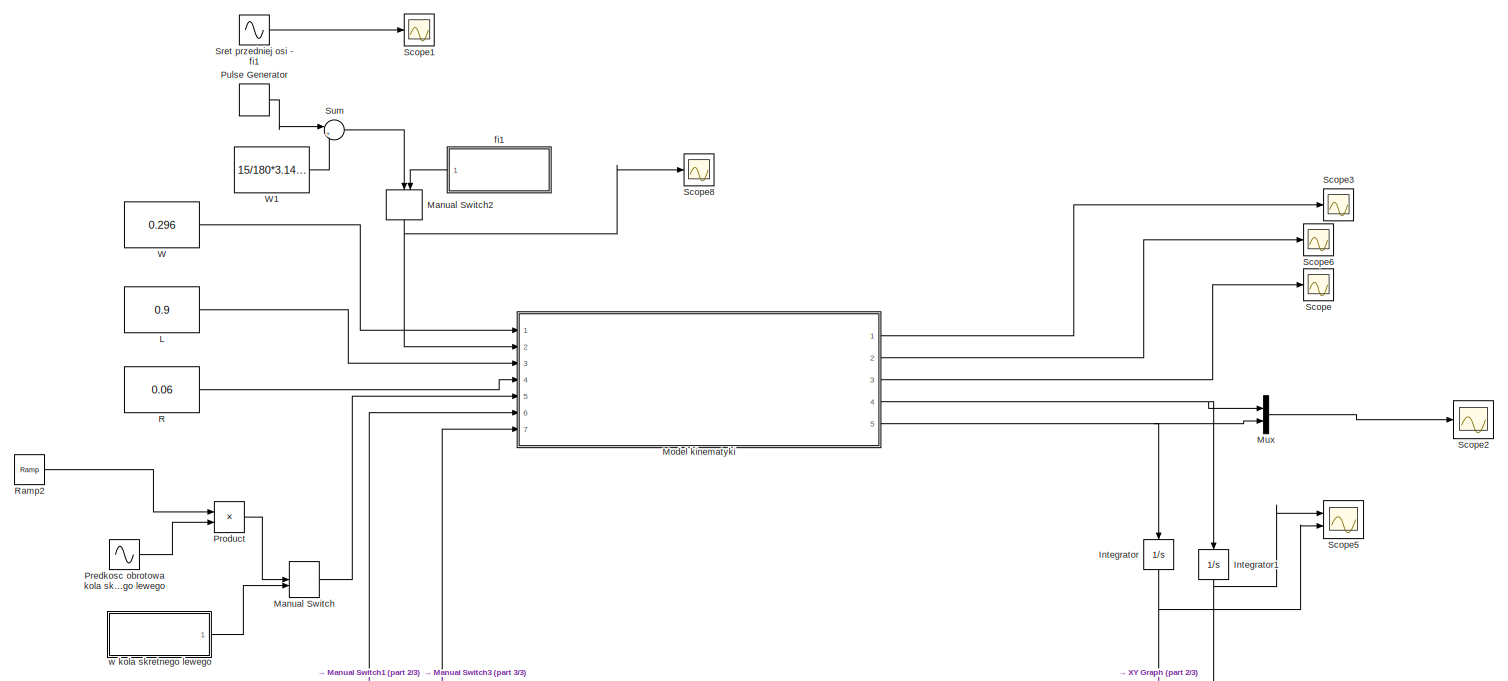
[diagram: root canvas - part 1/3, full width, top band]
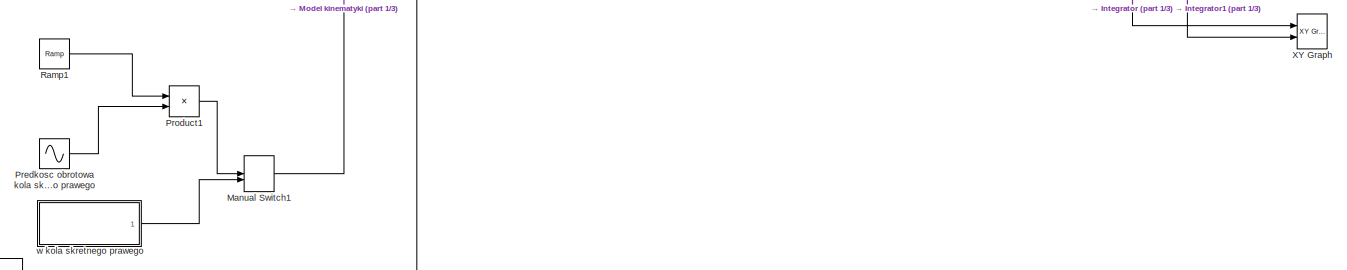
[diagram: root canvas - part 2/3, full width, middle band]
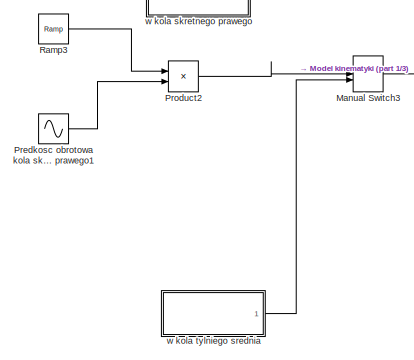
[diagram: root canvas - part 3/3, bottom left region]
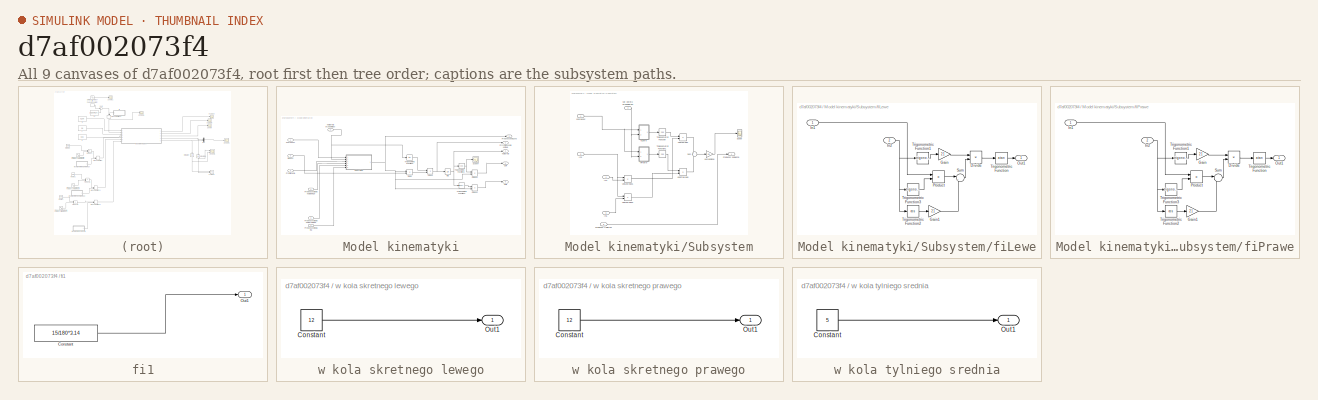
[diagram: thumbnail index - all 9 canvases of the model, root first then tree order]
MODEL slx_d7af002073f4
KIND model
CONFIG AbsTol = auto
CONFIG EnableMultiTasking = off
CONFIG FixedStep = 0.01
CONFIG MaxStep = auto
CONFIG MinStep = auto
CONFIG RelTol = 1e-3
CONFIG SampleTimeConstraint = Unconstrained
CONFIG Solver = FixedStepAuto
CONFIG SolverName = FixedStepAuto
CONFIG StartTime = 0.0
CONFIG StopTime = 40.0
BLOCK [Integrator] Integrator
  Ports = [1, 1]
BLOCK [Integrator] Integrator1
  Ports = [1, 1]
BLOCK [Constant] L
  Value = 0.9
BLOCK [ManualSwitch] Manual Switch
  CurrentSetting = 0
BLOCK [ManualSwitch] Manual Switch1
  CurrentSetting = 0
BLOCK [ManualSwitch] Manual Switch2
BLOCK [ManualSwitch] Manual Switch3
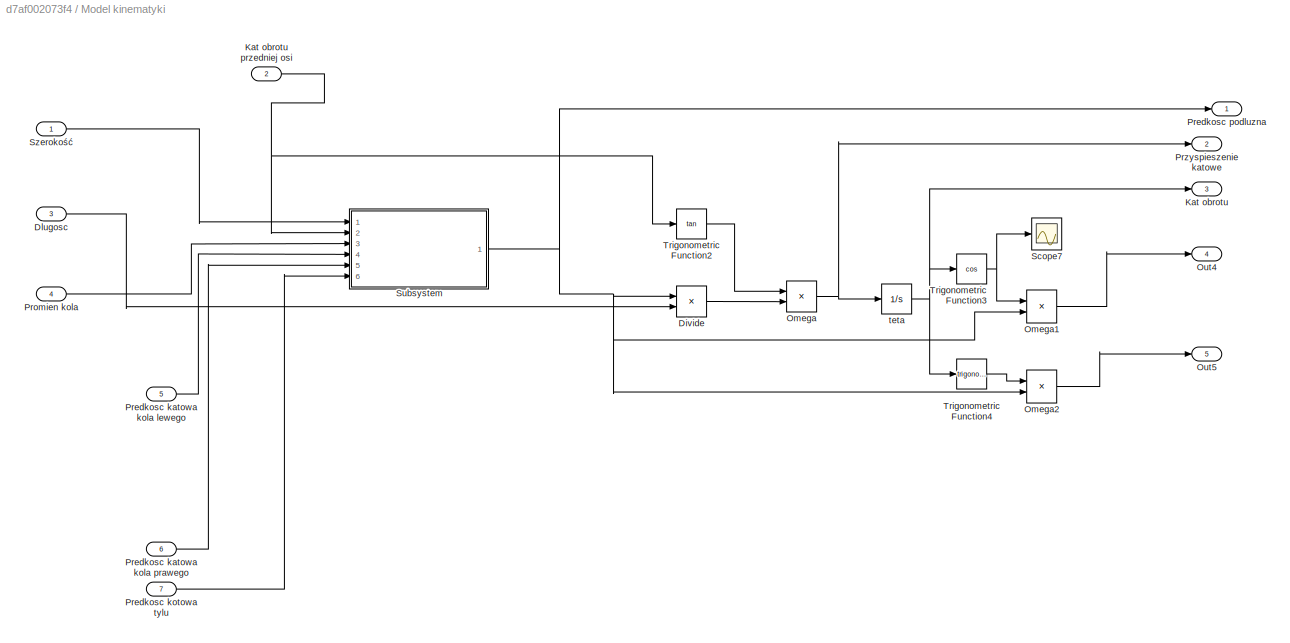
BLOCK [SubSystem] Model kinematyki
  Ports = [7, 5]
  RequestExecContextInheritance = off
BLOCK [Product] Model kinematyki/Divide
  InputSameDT = off
  Inputs = */
  OutDataTypeStr = Inherit: Inherit via internal rule
  Ports = [2, 1]
  RndMeth = Floor
  SaturateOnIntegerOverflow = off
BLOCK [Inport] Model kinematyki/Dlugosc
  IconDisplay = Port number
  Port = 3
BLOCK [Outport] Model kinematyki/Kat obrotu
  IconDisplay = Port number
  Port = 3
BLOCK [Inport] Model kinematyki/Kat obrotu przedniej osi
  IconDisplay = Port number
  Port = 2
BLOCK [Product] Model kinematyki/Omega
  InputSameDT = off
  OutDataTypeStr = Inherit: Inherit via internal rule
  Ports = [2, 1]
  RndMeth = Floor
  SaturateOnIntegerOverflow = off
BLOCK [Product] Model kinematyki/Omega1
  InputSameDT = off
  OutDataTypeStr = Inherit: Inherit via internal rule
  Ports = [2, 1]
  RndMeth = Floor
  SaturateOnIntegerOverflow = off
BLOCK [Product] Model kinematyki/Omega2
  InputSameDT = off
  OutDataTypeStr = Inherit: Inherit via internal rule
  Ports = [2, 1]
  RndMeth = Floor
  SaturateOnIntegerOverflow = off
BLOCK [Outport] Model kinematyki/Out4
  IconDisplay = Port number
  Port = 4
BLOCK [Outport] Model kinematyki/Out5
  IconDisplay = Port number
  Port = 5
BLOCK [Inport] Model kinematyki/Predkosc katowa kola lewego
  IconDisplay = Port number
  Port = 5
BLOCK [Inport] Model kinematyki/Predkosc katowa kola prawego
  IconDisplay = Port number
  Port = 6
BLOCK [Inport] Model kinematyki/Predkosc kotowa tylu
  IconDisplay = Port number
  Port = 7
BLOCK [Outport] Model kinematyki/Predkosc podluzna
  IconDisplay = Port number
BLOCK [Inport] Model kinematyki/Promien kola
  IconDisplay = Port number
  Port = 4
BLOCK [Outport] Model kinematyki/Przyspieszenie katowe
  IconDisplay = Port number
  Port = 2
BLOCK [Scope] Model kinematyki/Scope7
  Floating = off
  NumInputPorts = 1
  Ports = [1]
  ScopeSpecificationString = Simulink.scopes.TimeScopeBlockCfg('CurrentConfiguration', extmgr.ConfigurationSet(extmgr.Configuration('Core','General UI',true),extmgr.Configuration('Core','Source UI',true),extmgr.Configuration('Sources','WiredSimulink',true,'DataLoggingVariableName','ScopeData7'),extmgr.Configuration('Visuals','Time Domain',true,'SerializedDisplays',{struct('MinYLimReal','-1.24979','MaxYLimReal','1.25','YLabelR...<+1417ch>
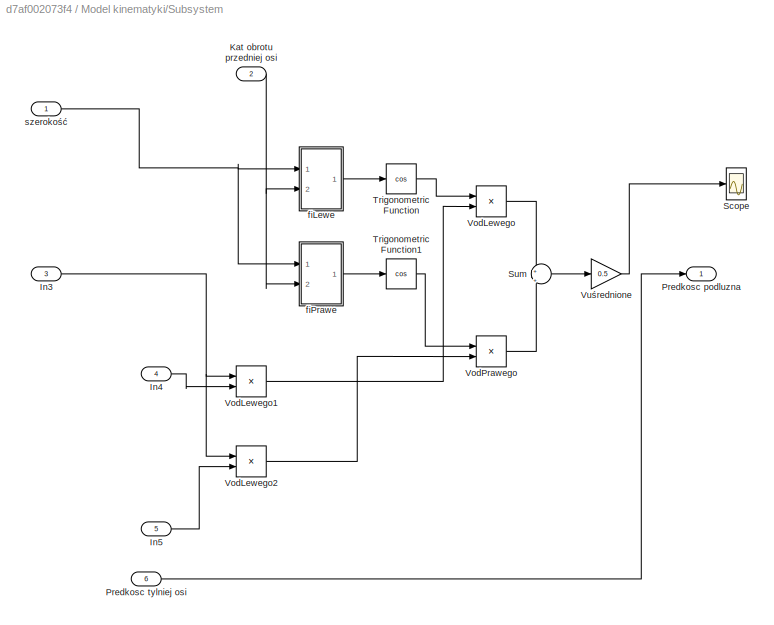
BLOCK [SubSystem] Model kinematyki/Subsystem
  Ports = [6, 1]
  RequestExecContextInheritance = off
BLOCK [Inport] Model kinematyki/Subsystem/In3
  IconDisplay = Port number
  Port = 3
BLOCK [Inport] Model kinematyki/Subsystem/In4
  IconDisplay = Port number
  Port = 4
BLOCK [Inport] Model kinematyki/Subsystem/In5
  IconDisplay = Port number
  Port = 5
BLOCK [Inport] Model kinematyki/Subsystem/Kat obrotu przedniej osi
  IconDisplay = Port number
  Port = 2
BLOCK [Outport] Model kinematyki/Subsystem/Predkosc podluzna
  IconDisplay = Port number
BLOCK [Inport] Model kinematyki/Subsystem/Predkosc tylniej osi
  IconDisplay = Port number
  Port = 6
BLOCK [Scope] Model kinematyki/Subsystem/Scope
  Floating = off
  NumInputPorts = 1
  Ports = [1]
  ScopeSpecificationString = Simulink.scopes.TimeScopeBlockCfg('CurrentConfiguration', extmgr.ConfigurationSet(extmgr.Configuration('Core','General UI',true),extmgr.Configuration('Core','Source UI',true),extmgr.Configuration('Sources','WiredSimulink',true,'DataLoggingVariableName','ScopeData1'),extmgr.Configuration('Visuals','Time Domain',true),extmgr.Configuration('Tools','Plot Navigation',true),extmgr.Configuration('Tools',...<+40ch>
BLOCK [Sum] Model kinematyki/Subsystem/Sum
  IconShape = round
  InputSameDT = off
  Inputs = +||+
  OutDataTypeStr = Inherit: Inherit via internal rule
  Ports = [2, 1]
  SaturateOnIntegerOverflow = off
BLOCK [Trigonometry] Model kinematyki/Subsystem/Trigonometric Function
  Operator = cos
  Ports = [1, 1]
BLOCK [Trigonometry] Model kinematyki/Subsystem/Trigonometric Function1
  Operator = cos
  Ports = [1, 1]
BLOCK [Product] Model kinematyki/Subsystem/VodLewego
  InputSameDT = off
  OutDataTypeStr = Inherit: Inherit via internal rule
  Ports = [2, 1]
  RndMeth = Floor
  SaturateOnIntegerOverflow = off
BLOCK [Product] Model kinematyki/Subsystem/VodLewego1
  InputSameDT = off
  OutDataTypeStr = Inherit: Inherit via internal rule
  Ports = [2, 1]
  RndMeth = Floor
  SaturateOnIntegerOverflow = off
BLOCK [Product] Model kinematyki/Subsystem/VodLewego2
  InputSameDT = off
  OutDataTypeStr = Inherit: Inherit via internal rule
  Ports = [2, 1]
  RndMeth = Floor
  SaturateOnIntegerOverflow = off
BLOCK [Product] Model kinematyki/Subsystem/VodPrawego
  InputSameDT = off
  OutDataTypeStr = Inherit: Inherit via internal rule
  Ports = [2, 1]
  RndMeth = Floor
  SaturateOnIntegerOverflow = off
BLOCK [Gain] Model kinematyki/Subsystem/Vuśrednione
  Gain = 0.5
  OutDataTypeStr = Inherit: Inherit via internal rule
  ParamDataTypeStr = Inherit: Inherit via internal rule
  SaturateOnIntegerOverflow = off
BLOCK [SubSystem] Model kinematyki/Subsystem/fiLewe
  Ports = [2, 1]
  RequestExecContextInheritance = off
BLOCK [Product] Model kinematyki/Subsystem/fiLewe/Divide
  InputSameDT = off
  Inputs = */
  OutDataTypeStr = Inherit: Inherit via internal rule
  Ports = [2, 1]
  RndMeth = Floor
  SaturateOnIntegerOverflow = off
BLOCK [Gain] Model kinematyki/Subsystem/fiLewe/Gain
  Gain = 21
  OutDataTypeStr = Inherit: Inherit via internal rule
  ParamDataTypeStr = Inherit: Inherit via internal rule
  SaturateOnIntegerOverflow = off
BLOCK [Gain] Model kinematyki/Subsystem/fiLewe/Gain1
  Gain = 21
  OutDataTypeStr = Inherit: Inherit via internal rule
  ParamDataTypeStr = Inherit: Inherit via internal rule
  SaturateOnIntegerOverflow = off
BLOCK [Inport] Model kinematyki/Subsystem/fiLewe/In1
  IconDisplay = Port number
BLOCK [Inport] Model kinematyki/Subsystem/fiLewe/In2
  IconDisplay = Port number
  Port = 2
BLOCK [Outport] Model kinematyki/Subsystem/fiLewe/Out1
  IconDisplay = Port number
BLOCK [Product] Model kinematyki/Subsystem/fiLewe/Product
  InputSameDT = off
  OutDataTypeStr = Inherit: Inherit via internal rule
  Ports = [2, 1]
  RndMeth = Floor
  SaturateOnIntegerOverflow = off
BLOCK [Sum] Model kinematyki/Subsystem/fiLewe/Sum
  IconShape = round
  InputSameDT = off
  Inputs = |++
  OutDataTypeStr = Inherit: Inherit via internal rule
  Ports = [2, 1]
  SaturateOnIntegerOverflow = off
BLOCK [Trigonometry] Model kinematyki/Subsystem/fiLewe/Trigonometric Function
  Operator = atan
  Ports = [1, 1]
BLOCK [Trigonometry] Model kinematyki/Subsystem/fiLewe/Trigonometric Function1
  Ports = [1, 1]
BLOCK [Trigonometry] Model kinematyki/Subsystem/fiLewe/Trigonometric Function2
  Operator = cos
  Ports = [1, 1]
BLOCK [Trigonometry] Model kinematyki/Subsystem/fiLewe/Trigonometric Function3
  Ports = [1, 1]
BLOCK [SubSystem] Model kinematyki/Subsystem/fiPrawe
  Ports = [2, 1]
  RequestExecContextInheritance = off
BLOCK [Product] Model kinematyki/Subsystem/fiPrawe/Divide
  InputSameDT = off
  Inputs = */
  OutDataTypeStr = Inherit: Inherit via internal rule
  Ports = [2, 1]
  RndMeth = Floor
  SaturateOnIntegerOverflow = off
BLOCK [Gain] Model kinematyki/Subsystem/fiPrawe/Gain
  Gain = 21
  OutDataTypeStr = Inherit: Inherit via internal rule
  ParamDataTypeStr = Inherit: Inherit via internal rule
  SaturateOnIntegerOverflow = off
BLOCK [Gain] Model kinematyki/Subsystem/fiPrawe/Gain1
  Gain = 21
  OutDataTypeStr = Inherit: Inherit via internal rule
  ParamDataTypeStr = Inherit: Inherit via internal rule
  SaturateOnIntegerOverflow = off
BLOCK [Inport] Model kinematyki/Subsystem/fiPrawe/In1
  IconDisplay = Port number
BLOCK [Inport] Model kinematyki/Subsystem/fiPrawe/In2
  IconDisplay = Port number
  Port = 2
BLOCK [Outport] Model kinematyki/Subsystem/fiPrawe/Out1
  IconDisplay = Port number
BLOCK [Product] Model kinematyki/Subsystem/fiPrawe/Product
  InputSameDT = off
  OutDataTypeStr = Inherit: Inherit via internal rule
  Ports = [2, 1]
  RndMeth = Floor
  SaturateOnIntegerOverflow = off
BLOCK [Sum] Model kinematyki/Subsystem/fiPrawe/Sum
  IconShape = round
  InputSameDT = off
  Inputs = |-+
  OutDataTypeStr = Inherit: Inherit via internal rule
  Ports = [2, 1]
  SaturateOnIntegerOverflow = off
BLOCK [Trigonometry] Model kinematyki/Subsystem/fiPrawe/Trigonometric Function
  Operator = atan
  Ports = [1, 1]
BLOCK [Trigonometry] Model kinematyki/Subsystem/fiPrawe/Trigonometric Function1
  Ports = [1, 1]
BLOCK [Trigonometry] Model kinematyki/Subsystem/fiPrawe/Trigonometric Function2
  Operator = cos
  Ports = [1, 1]
BLOCK [Trigonometry] Model kinematyki/Subsystem/fiPrawe/Trigonometric Function3
  Ports = [1, 1]
BLOCK [Inport] Model kinematyki/Subsystem/szerokość
  IconDisplay = Port number
BLOCK [Inport] Model kinematyki/Szerokość
  IconDisplay = Port number
BLOCK [Trigonometry] Model kinematyki/Trigonometric Function2
  Operator = tan
  Ports = [1, 1]
BLOCK [Trigonometry] Model kinematyki/Trigonometric Function3
  Operator = cos
  Ports = [1, 1]
BLOCK [Trigonometry] Model kinematyki/Trigonometric Function4
  Ports = [1, 1]
BLOCK [Integrator] Model kinematyki/teta
  Ports = [1, 1]
BLOCK [Mux] Mux
  DisplayOption = bar
  Inputs = 2
  Ports = [2, 1]
BLOCK [Sin] Predkosc obrotowa kola skretnego lewego
  Amplitude = 3
  Bias = 5
  Frequency = 0.01
  Ports = [0, 1]
  SampleTime = 0
BLOCK [Sin] Predkosc obrotowa kola skretnego prawego
  Amplitude = 3
  Bias = 5
  Frequency = 0.01
  Ports = [0, 1]
  SampleTime = 0
BLOCK [Sin] Predkosc obrotowa kola skretnego prawego1
  Amplitude = 3
  Bias = 5
  Frequency = 0.01
  Ports = [0, 1]
  SampleTime = 0
BLOCK [Product] Product
  InputSameDT = off
  OutDataTypeStr = Inherit: Inherit via internal rule
  Ports = [2, 1]
  RndMeth = Floor
  SaturateOnIntegerOverflow = off
BLOCK [Product] Product1
  InputSameDT = off
  OutDataTypeStr = Inherit: Inherit via internal rule
  Ports = [2, 1]
  RndMeth = Floor
  SaturateOnIntegerOverflow = off
BLOCK [Product] Product2
  InputSameDT = off
  OutDataTypeStr = Inherit: Inherit via internal rule
  Ports = [2, 1]
  RndMeth = Floor
  SaturateOnIntegerOverflow = off
BLOCK [DiscretePulseGenerator] Pulse Generator
  Amplitude = 15/180*3.14
  Period = 1
  Ports = [0, 1]
  PulseType = Time based
  PulseWidth = 50
BLOCK [Constant] R
  Value = 0.06
BLOCK [Reference] Ramp1  REF=simulink/Sources/Ramp
  Ports = [0, 1]
  SourceBlock = simulink/Sources/Ramp
  SourceProductBaseCode = SL
  SourceProductName = Simulink
  SourceType = Ramp
BLOCK [Reference] Ramp2  REF=simulink/Sources/Ramp
  Ports = [0, 1]
  SourceBlock = simulink/Sources/Ramp
  SourceProductBaseCode = SL
  SourceProductName = Simulink
  SourceType = Ramp
BLOCK [Reference] Ramp3  REF=simulink/Sources/Ramp
  Ports = [0, 1]
  SourceBlock = simulink/Sources/Ramp
  SourceProductBaseCode = SL
  SourceProductName = Simulink
  SourceType = Ramp
BLOCK [Scope] Scope
  Floating = off
  NumInputPorts = 1
  Ports = [1]
  ScopeSpecificationString = Simulink.scopes.TimeScopeBlockCfg('CurrentConfiguration', extmgr.ConfigurationSet(extmgr.Configuration('Core','General UI',true),extmgr.Configuration('Core','Source UI',true),extmgr.Configuration('Sources','WiredSimulink',true),extmgr.Configuration('Visuals','Time Domain',true,'SerializedDisplays',{struct('MinYLimReal','-0.04569','MaxYLimReal','0.4112','YLabelReal','','MinYLimMag','0.00000','MaxYL...<+1334ch>
BLOCK [Scope] Scope1
  Floating = off
  NumInputPorts = 1
  Ports = [1]
  ScopeSpecificationString = Simulink.scopes.TimeScopeBlockCfg('CurrentConfiguration', extmgr.ConfigurationSet(extmgr.Configuration('Core','General UI',true),extmgr.Configuration('Core','Source UI',true),extmgr.Configuration('Sources','WiredSimulink',true,'DataLoggingVariableName','ScopeData1'),extmgr.Configuration('Visuals','Time Domain',true,'SerializedDisplays',{struct('MinYLimReal','-0.3125','MaxYLimReal','0.3125','YLabel...<+1356ch>
BLOCK [Scope] Scope2
  Floating = off
  NumInputPorts = 1
  Ports = [1]
  ScopeSpecificationString = Simulink.scopes.TimeScopeBlockCfg('CurrentConfiguration', extmgr.ConfigurationSet(extmgr.Configuration('Core','General UI',true),extmgr.Configuration('Core','Source UI',true),extmgr.Configuration('Sources','WiredSimulink',true,'DataLoggingVariableName','ScopeData2'),extmgr.Configuration('Visuals','Time Domain',true,'SerializedDisplays',{struct('MinYLimReal','-0.625','MaxYLimReal','5.625','YLabelRe...<+1386ch>
BLOCK [Scope] Scope3
  Floating = off
  NumInputPorts = 1
  Ports = [1]
  ScopeSpecificationString = Simulink.scopes.TimeScopeBlockCfg('CurrentConfiguration', extmgr.ConfigurationSet(extmgr.Configuration('Core','General UI',true),extmgr.Configuration('Core','Source UI',true),extmgr.Configuration('Sources','WiredSimulink',true,'DataLoggingVariableName','ScopeData3'),extmgr.Configuration('Visuals','Time Domain',true,'SerializedDisplays',{struct('MinYLimReal','4.00000','MaxYLimReal','6.00000','YLabe...<+1375ch>
BLOCK [Scope] Scope5
  Floating = off
  NumInputPorts = 2
  Ports = [2]
  ScopeSpecificationString = Simulink.scopes.TimeScopeBlockCfg('CurrentConfiguration', extmgr.ConfigurationSet(extmgr.Configuration('Core','General UI',true),extmgr.Configuration('Core','Source UI',true),extmgr.Configuration('Sources','WiredSimulink',true,'DataLoggingVariableName','ScopeData3'),extmgr.Configuration('Visuals','Time Domain',true,'SerializedDisplays',{struct('MinYLimReal','-24.44704','MaxYLimReal','220.02335','Y...<+1393ch>
BLOCK [Scope] Scope6
  Floating = off
  NumInputPorts = 1
  Ports = [1]
  ScopeSpecificationString = Simulink.scopes.TimeScopeBlockCfg('CurrentConfiguration', extmgr.ConfigurationSet(extmgr.Configuration('Core','General UI',true),extmgr.Configuration('Core','Source UI',true),extmgr.Configuration('Sources','WiredSimulink',true,'DataLoggingVariableName','ScopeData6'),extmgr.Configuration('Visuals','Time Domain',true,'SerializedDisplays',{struct('MinYLimReal','-0.91378','MaxYLimReal','0.91378','YLab...<+1377ch>
BLOCK [Scope] Scope8
  Floating = off
  NumInputPorts = 1
  Ports = [1]
  ScopeSpecificationString = Simulink.scopes.TimeScopeBlockCfg('CurrentConfiguration', extmgr.ConfigurationSet(extmgr.Configuration('Core','General UI',true),extmgr.Configuration('Core','Source UI',true),extmgr.Configuration('Sources','WiredSimulink',true,'DataLoggingVariableName','ScopeData8'),extmgr.Configuration('Visuals','Time Domain',true,'SerializedDisplays',{struct('MinYLimReal','0.04','MaxYLimReal','0.06','YLabelReal'...<+1347ch>
BLOCK [Sin] Sret przedniej osi - fi1
  Amplitude = 30/180*3.14
  Frequency = 0.05
  Ports = [0, 1]
  SampleTime = 0
BLOCK [Sum] Sum
  IconShape = round
  InputSameDT = off
  Inputs = |+-
  OutDataTypeStr = Inherit: Inherit via internal rule
  Ports = [2, 1]
  SaturateOnIntegerOverflow = off
BLOCK [Constant] W
  Value = 0.296
BLOCK [Constant] W1
  Value = 15/180*3.14/2
BLOCK [Reference] XY Graph  REF=simulink/Sinks/XY Graph
  Ports = [2]
  SourceBlock = simulink/Sinks/XY Graph
  SourceProductBaseCode = SL
  SourceProductName = Simulink
  SourceType = XY scope.
BLOCK [SubSystem] fi1
  Ports = [0, 1]
  RequestExecContextInheritance = off
BLOCK [Constant] fi1/Constant
  Value = 15/180*3.14
BLOCK [Outport] fi1/Out1
  IconDisplay = Port number
BLOCK [SubSystem] w kola skretnego lewego
  Ports = [0, 1]
  RequestExecContextInheritance = off
BLOCK [Constant] w kola skretnego lewego/Constant
  Value = 12
BLOCK [Outport] w kola skretnego lewego/Out1
  IconDisplay = Port number
BLOCK [SubSystem] w kola skretnego prawego
  Ports = [0, 1]
  RequestExecContextInheritance = off
BLOCK [Constant] w kola skretnego prawego/Constant
  Value = 12
BLOCK [Outport] w kola skretnego prawego/Out1
  IconDisplay = Port number
BLOCK [SubSystem] w kola tylniego srednia
  Ports = [0, 1]
  RequestExecContextInheritance = off
BLOCK [Constant] w kola tylniego srednia/Constant
  Value = 5
BLOCK [Outport] w kola tylniego srednia/Out1
  IconDisplay = Port number
NET Integrator1:1 -> Scope5:1, XY Graph:2
NET Integrator:1 -> Scope5:2, XY Graph:1
LINE L:1 -> Model kinematyki:3
LINE Manual Switch1:1 -> Model kinematyki:6
NET Manual Switch2:1 -> Model kinematyki:2, Scope8:1
LINE Manual Switch3:1 -> Model kinematyki:7
LINE Manual Switch:1 -> Model kinematyki:5
LINE Model kinematyki/Divide:1 -> Model kinematyki/Omega:2
LINE Model kinematyki/Dlugosc:1 -> Model kinematyki/Divide:2
NET Model kinematyki/Kat obrotu przedniej osi:1 -> Model kinematyki/Subsystem:2, Model kinematyki/Trigonometric Function2:1
LINE Model kinematyki/Omega1:1 -> Model kinematyki/Out4:1
LINE Model kinematyki/Omega2:1 -> Model kinematyki/Out5:1
NET Model kinematyki/Omega:1 -> Model kinematyki/Przyspieszenie katowe:1, Model kinematyki/teta:1
LINE Model kinematyki/Predkosc katowa kola lewego:1 -> Model kinematyki/Subsystem:4
LINE Model kinematyki/Predkosc katowa kola prawego:1 -> Model kinematyki/Subsystem:5
LINE Model kinematyki/Predkosc kotowa tylu:1 -> Model kinematyki/Subsystem:6
LINE Model kinematyki/Promien kola:1 -> Model kinematyki/Subsystem:3
NET Model kinematyki/Subsystem/In3:1 -> Model kinematyki/Subsystem/VodLewego1:1, Model kinematyki/Subsystem/VodLewego2:1
LINE Model kinematyki/Subsystem/In4:1 -> Model kinematyki/Subsystem/VodLewego1:2
LINE Model kinematyki/Subsystem/In5:1 -> Model kinematyki/Subsystem/VodLewego2:2
NET Model kinematyki/Subsystem/Kat obrotu przedniej osi:1 -> Model kinematyki/Subsystem/fiLewe:2, Model kinematyki/Subsystem/fiPrawe:2
LINE Model kinematyki/Subsystem/Predkosc tylniej osi:1 -> Model kinematyki/Subsystem/Predkosc podluzna:1
LINE Model kinematyki/Subsystem/Sum:1 -> Model kinematyki/Subsystem/Vuśrednione:1
LINE Model kinematyki/Subsystem/Trigonometric Function1:1 -> Model kinematyki/Subsystem/VodPrawego:1
LINE Model kinematyki/Subsystem/Trigonometric Function:1 -> Model kinematyki/Subsystem/VodLewego:1
LINE Model kinematyki/Subsystem/VodLewego1:1 -> Model kinematyki/Subsystem/VodLewego:2
LINE Model kinematyki/Subsystem/VodLewego2:1 -> Model kinematyki/Subsystem/VodPrawego:2
LINE Model kinematyki/Subsystem/VodLewego:1 -> Model kinematyki/Subsystem/Sum:1
LINE Model kinematyki/Subsystem/VodPrawego:1 -> Model kinematyki/Subsystem/Sum:2
LINE Model kinematyki/Subsystem/Vuśrednione:1 -> Model kinematyki/Subsystem/Scope:1
LINE Model kinematyki/Subsystem/fiLewe/Divide:1 -> Model kinematyki/Subsystem/fiLewe/Trigonometric Function:1
LINE Model kinematyki/Subsystem/fiLewe/Gain1:1 -> Model kinematyki/Subsystem/fiLewe/Sum:2
LINE Model kinematyki/Subsystem/fiLewe/Gain:1 -> Model kinematyki/Subsystem/fiLewe/Divide:1
LINE Model kinematyki/Subsystem/fiLewe/In1:1 -> Model kinematyki/Subsystem/fiLewe/Product:1
NET Model kinematyki/Subsystem/fiLewe/In2:1 -> Model kinematyki/Subsystem/fiLewe/Trigonometric Function1:1, Model kinematyki/Subsystem/fiLewe/Trigonometric Function2:1, Model kinematyki/Subsystem/fiLewe/Trigonometric Function3:1
LINE Model kinematyki/Subsystem/fiLewe/Product:1 -> Model kinematyki/Subsystem/fiLewe/Sum:1
LINE Model kinematyki/Subsystem/fiLewe/Sum:1 -> Model kinematyki/Subsystem/fiLewe/Divide:2
LINE Model kinematyki/Subsystem/fiLewe/Trigonometric Function1:1 -> Model kinematyki/Subsystem/fiLewe/Gain:1
LINE Model kinematyki/Subsystem/fiLewe/Trigonometric Function2:1 -> Model kinematyki/Subsystem/fiLewe/Gain1:1
LINE Model kinematyki/Subsystem/fiLewe/Trigonometric Function3:1 -> Model kinematyki/Subsystem/fiLewe/Product:2
LINE Model kinematyki/Subsystem/fiLewe/Trigonometric Function:1 -> Model kinematyki/Subsystem/fiLewe/Out1:1
LINE Model kinematyki/Subsystem/fiLewe:1 -> Model kinematyki/Subsystem/Trigonometric Function:1
LINE Model kinematyki/Subsystem/fiPrawe/Divide:1 -> Model kinematyki/Subsystem/fiPrawe/Trigonometric Function:1
LINE Model kinematyki/Subsystem/fiPrawe/Gain1:1 -> Model kinematyki/Subsystem/fiPrawe/Sum:2
LINE Model kinematyki/Subsystem/fiPrawe/Gain:1 -> Model kinematyki/Subsystem/fiPrawe/Divide:1
LINE Model kinematyki/Subsystem/fiPrawe/In1:1 -> Model kinematyki/Subsystem/fiPrawe/Product:1
NET Model kinematyki/Subsystem/fiPrawe/In2:1 -> Model kinematyki/Subsystem/fiPrawe/Trigonometric Function1:1, Model kinematyki/Subsystem/fiPrawe/Trigonometric Function2:1, Model kinematyki/Subsystem/fiPrawe/Trigonometric Function3:1
LINE Model kinematyki/Subsystem/fiPrawe/Product:1 -> Model kinematyki/Subsystem/fiPrawe/Sum:1
LINE Model kinematyki/Subsystem/fiPrawe/Sum:1 -> Model kinematyki/Subsystem/fiPrawe/Divide:2
LINE Model kinematyki/Subsystem/fiPrawe/Trigonometric Function1:1 -> Model kinematyki/Subsystem/fiPrawe/Gain:1
LINE Model kinematyki/Subsystem/fiPrawe/Trigonometric Function2:1 -> Model kinematyki/Subsystem/fiPrawe/Gain1:1
LINE Model kinematyki/Subsystem/fiPrawe/Trigonometric Function3:1 -> Model kinematyki/Subsystem/fiPrawe/Product:2
LINE Model kinematyki/Subsystem/fiPrawe/Trigonometric Function:1 -> Model kinematyki/Subsystem/fiPrawe/Out1:1
LINE Model kinematyki/Subsystem/fiPrawe:1 -> Model kinematyki/Subsystem/Trigonometric Function1:1
NET Model kinematyki/Subsystem/szerokość:1 -> Model kinematyki/Subsystem/fiLewe:1, Model kinematyki/Subsystem/fiPrawe:1
NET Model kinematyki/Subsystem:1 -> Model kinematyki/Divide:1, Model kinematyki/Omega1:2, Model kinematyki/Omega2:2, Model kinematyki/Predkosc podluzna:1
LINE Model kinematyki/Szerokość:1 -> Model kinematyki/Subsystem:1
LINE Model kinematyki/Trigonometric Function2:1 -> Model kinematyki/Omega:1
NET Model kinematyki/Trigonometric Function3:1 -> Model kinematyki/Omega1:1, Model kinematyki/Scope7:1
LINE Model kinematyki/Trigonometric Function4:1 -> Model kinematyki/Omega2:1
NET Model kinematyki/teta:1 -> Model kinematyki/Kat obrotu:1, Model kinematyki/Trigonometric Function3:1, Model kinematyki/Trigonometric Function4:1
LINE Model kinematyki:1 -> Scope3:1
LINE Model kinematyki:2 -> Scope6:1
LINE Model kinematyki:3 -> Scope:1
NET Model kinematyki:4 -> Integrator1:1, Mux:1
NET Model kinematyki:5 -> Integrator:1, Mux:2
LINE Mux:1 -> Scope2:1
LINE Predkosc obrotowa kola skretnego lewego:1 -> Product:2
LINE Predkosc obrotowa kola skretnego prawego1:1 -> Product2:2
LINE Predkosc obrotowa kola skretnego prawego:1 -> Product1:2
LINE Product1:1 -> Manual Switch1:1
LINE Product2:1 -> Manual Switch3:1
LINE Product:1 -> Manual Switch:1
LINE Pulse Generator:1 -> Sum:1
LINE R:1 -> Model kinematyki:4
LINE Ramp1:1 -> Product1:1
LINE Ramp2:1 -> Product:1
LINE Ramp3:1 -> Product2:1
LINE Sret przedniej osi - fi1:1 -> Scope1:1
LINE Sum:1 -> Manual Switch2:1
LINE W1:1 -> Sum:2
LINE W:1 -> Model kinematyki:1
LINE fi1/Constant:1 -> fi1/Out1:1
LINE fi1:1 -> Manual Switch2:2
LINE w kola skretnego lewego/Constant:1 -> w kola skretnego lewego/Out1:1
LINE w kola skretnego lewego:1 -> Manual Switch:2
LINE w kola skretnego prawego/Constant:1 -> w kola skretnego prawego/Out1:1
LINE w kola skretnego prawego:1 -> Manual Switch1:2
LINE w kola tylniego srednia/Constant:1 -> w kola tylniego srednia/Out1:1
LINE w kola tylniego srednia:1 -> Manual Switch3:2
note: NET lines group one-source signal fan-out (src -> all destinations, sorted); 1:1 wires keep LINE
